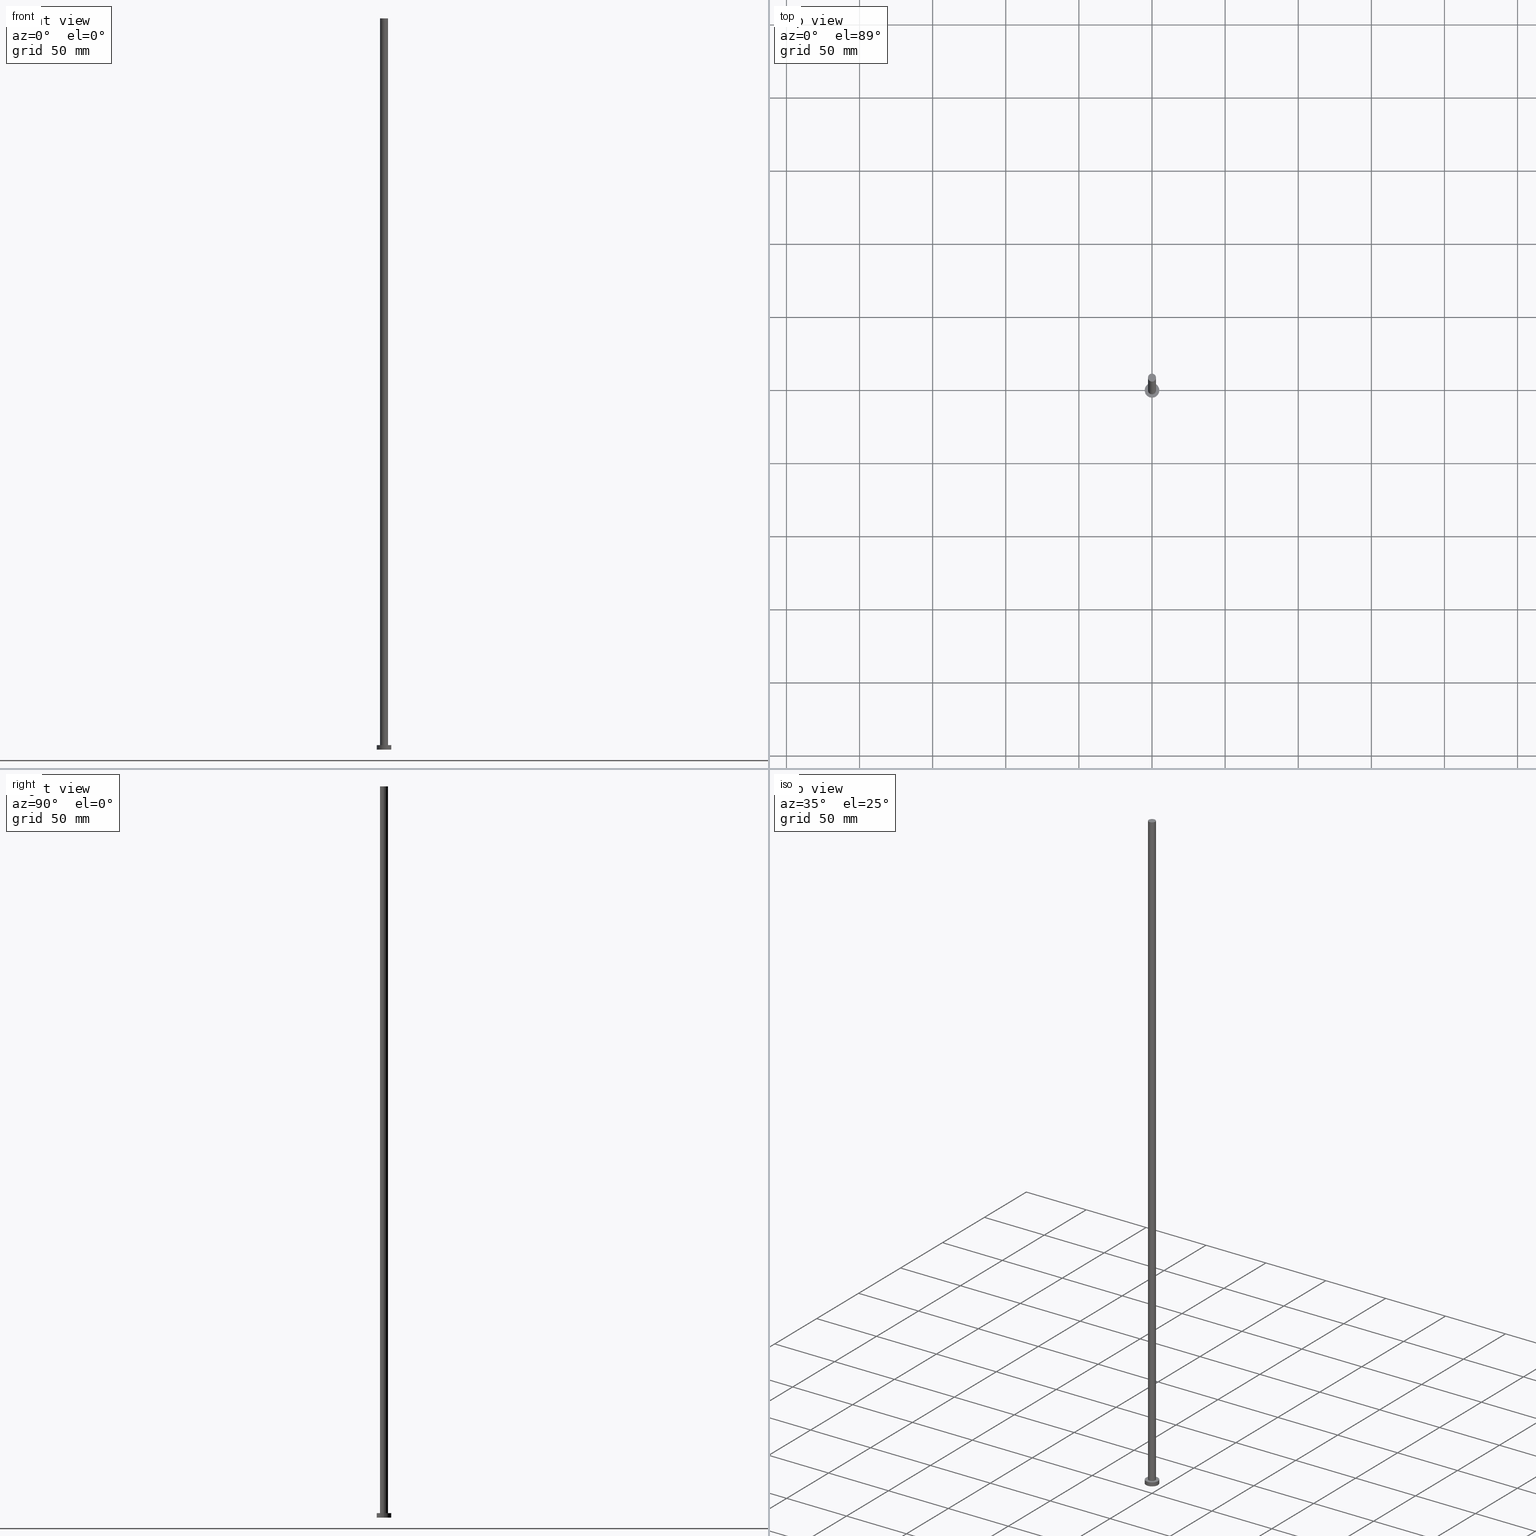
[diagram: canonical four-view strip — front | top / right | iso, engineering-drawing reading convention]
A machine part, canonical four-view strip (front | top / right | iso — engineering-drawing reading convention). The complete STEP part file that produces these views, byte-faithful:
ISO-10303-21;
HEADER;
FILE_DESCRIPTION (( 'STEP AP203' ),
    '1' );
FILE_NAME ('11bc.STEP',
    '2023-02-13T15:23:10',
    ( '' ),
    ( '' ),
    'SwSTEP 2.0',
    'SolidWorks 2019',
    '' );
FILE_SCHEMA (( 'CONFIG_CONTROL_DESIGN' ));
ENDSEC;

DATA;
#1 = PERSON_AND_ORGANIZATION ( #80, #245 ) ;
#2 = CARTESIAN_POINT ( 'NONE',  ( 0.000000000000000000, 0.000000000000000000, 0.000000000000000000 ) ) ;
#3 = PERSON_AND_ORGANIZATION ( #80, #245 ) ;
#4 = DIRECTION ( 'NONE',  ( 0.000000000000000000, 0.000000000000000000, 1.000000000000000000 ) ) ;
#5 = PRODUCT ( '11bc', '11bc', '', ( #178 ) ) ;
#6 = VERTEX_POINT ( 'NONE', #249 ) ;
#7 = DIRECTION ( 'NONE',  ( 0.000000000000000000, 0.000000000000000000, 1.000000000000000000 ) ) ;
#8 = VERTEX_POINT ( 'NONE', #146 ) ;
#9 = ORIENTED_EDGE ( 'NONE', *, *, #126, .F. ) ;
#10 = LINE ( 'NONE', #162, #170 ) ;
#11 = EDGE_CURVE ( 'NONE', #70, #6, #138, .T. ) ;
#12 = FACE_OUTER_BOUND ( 'NONE', #79, .T. ) ;
#13 = CIRCLE ( 'NONE', #211, 5.000000000000000000 ) ;
#14 = CARTESIAN_POINT ( 'NONE',  ( 2.750000000000000000, 3.367778697655220519E-16, 500.0000000000000000 ) ) ;
#15 = DIRECTION ( 'NONE',  ( -0.000000000000000000, -0.000000000000000000, -1.000000000000000000 ) ) ;
#16 = CC_DESIGN_DATE_AND_TIME_ASSIGNMENT ( #222, #60, ( #173 ) ) ;
#17 = APPLICATION_CONTEXT ( 'configuration controlled 3d designs of mechanical parts and assemblies' ) ;
#18 = APPROVAL_DATE_TIME ( #189, #214 ) ;
#19 = AXIS2_PLACEMENT_3D ( 'NONE', #2, #96, #130 ) ;
#20 = ORIENTED_EDGE ( 'NONE', *, *, #237, .F. ) ;
#21 = FACE_OUTER_BOUND ( 'NONE', #175, .T. ) ;
#22 = DATE_AND_TIME ( #194, #30 ) ;
#23 = DIRECTION ( 'NONE',  ( -1.000000000000000000, 0.000000000000000000, 0.000000000000000000 ) ) ;
#24 = CC_DESIGN_PERSON_AND_ORGANIZATION_ASSIGNMENT ( #66, #210, ( #82 ) ) ;
#25 = APPROVAL_PERSON_ORGANIZATION ( #1, #125, #156 ) ;
#26 = CARTESIAN_POINT ( 'NONE',  ( 0.000000000000000000, 0.000000000000000000, 500.0000000000000000 ) ) ;
#27 = DIRECTION ( 'NONE',  ( -0.000000000000000000, -0.000000000000000000, -1.000000000000000000 ) ) ;
#28 = CC_DESIGN_APPROVAL ( #164, ( #185 ) ) ;
#29 = EDGE_CURVE ( 'NONE', #8, #215, #221, .T. ) ;
#30 = LOCAL_TIME ( 16, 23, 10.00000000000000000, #135 ) ;
#31 = DIRECTION ( 'NONE',  ( 0.000000000000000000, 0.000000000000000000, 1.000000000000000000 ) ) ;
#32 = CC_DESIGN_PERSON_AND_ORGANIZATION_ASSIGNMENT ( #172, #250, ( #185 ) ) ;
#33 = PERSON_AND_ORGANIZATION_ROLE ( 'design_owner' ) ;
#34 = FACE_OUTER_BOUND ( 'NONE', #150, .T. ) ;
#35 = APPROVAL_DATE_TIME ( #228, #164 ) ;
#36 = CARTESIAN_POINT ( 'NONE',  ( -5.000000000000000000, 0.000000000000000000, 3.000000000000000000 ) ) ;
#37 = PERSON_AND_ORGANIZATION_ROLE ( 'design_supplier' ) ;
#38 = DIRECTION ( 'NONE',  ( 0.000000000000000000, 0.000000000000000000, 1.000000000000000000 ) ) ;
#39 = PERSON_AND_ORGANIZATION ( #80, #245 ) ;
#40 = ORIENTED_EDGE ( 'NONE', *, *, #97, .T. ) ;
#41 = DIRECTION ( 'NONE',  ( 1.000000000000000000, 0.000000000000000000, -0.000000000000000000 ) ) ;
#42 = CARTESIAN_POINT ( 'NONE',  ( 0.000000000000000000, 0.000000000000000000, 500.0000000000000000 ) ) ;
#43 = CARTESIAN_POINT ( 'NONE',  ( 0.000000000000000000, 0.000000000000000000, 3.000000000000000000 ) ) ;
#44 =( NAMED_UNIT ( * ) PLANE_ANGLE_UNIT ( ) SI_UNIT ( $, .RADIAN. ) );
#45 = APPROVAL_STATUS ( 'not_yet_approved' ) ;
#46 = AXIS2_PLACEMENT_3D ( 'NONE', #238, #114, #23 ) ;
#47 = APPROVAL_ROLE ( '' ) ;
#48 = EDGE_CURVE ( 'NONE', #6, #70, #109, .T. ) ;
#49 = AXIS2_PLACEMENT_3D ( 'NONE', #42, #242, #121 ) ;
#50 = DATE_AND_TIME ( #174, #53 ) ;
#51 = ORIENTED_EDGE ( 'NONE', *, *, #188, .T. ) ;
#52 =( LENGTH_UNIT ( ) NAMED_UNIT ( * ) SI_UNIT ( .MILLI., .METRE. ) );
#53 = LOCAL_TIME ( 16, 23, 10.00000000000000000, #148 ) ;
#54 = CARTESIAN_POINT ( 'NONE',  ( 0.000000000000000000, 0.000000000000000000, 3.000000000000000000 ) ) ;
#55 = CYLINDRICAL_SURFACE ( 'NONE', #46, 5.000000000000000000 ) ;
#56 = DIRECTION ( 'NONE',  ( 0.000000000000000000, 0.000000000000000000, 1.000000000000000000 ) ) ;
#57 = UNCERTAINTY_MEASURE_WITH_UNIT (LENGTH_MEASURE( 1.000000000000000082E-05 ), #52, 'distance_accuracy_value', 'NONE');
#58 = CYLINDRICAL_SURFACE ( 'NONE', #49, 2.750000000000000000 ) ;
#59 = LINE ( 'NONE', #14, #207 ) ;
#60 = DATE_TIME_ROLE ( 'creation_date' ) ;
#61 = ORIENTED_EDGE ( 'NONE', *, *, #190, .F. ) ;
#62 = CC_DESIGN_PERSON_AND_ORGANIZATION_ASSIGNMENT ( #191, #33, ( #5 ) ) ;
#63 = CARTESIAN_POINT ( 'NONE',  ( 5.000000000000000000, 6.123233995736766282E-16, 3.000000000000000000 ) ) ;
#64 = FACE_OUTER_BOUND ( 'NONE', #123, .T. ) ;
#65 = DIRECTION ( 'NONE',  ( 0.000000000000000000, 0.000000000000000000, 1.000000000000000000 ) ) ;
#66 = PERSON_AND_ORGANIZATION ( #80, #245 ) ;
#67 = DIRECTION ( 'NONE',  ( 0.000000000000000000, 0.000000000000000000, 1.000000000000000000 ) ) ;
#68 = EDGE_CURVE ( 'NONE', #230, #99, #160, .T. ) ;
#69 = APPLICATION_PROTOCOL_DEFINITION ( 'international standard', 'config_control_design', 1994, #201 ) ;
#70 = VERTEX_POINT ( 'NONE', #195 ) ;
#71 = CARTESIAN_POINT ( 'NONE',  ( 2.750000000000000000, 3.367778697655220519E-16, 500.0000000000000000 ) ) ;
#72 = DIRECTION ( 'NONE',  ( 0.000000000000000000, 0.000000000000000000, 1.000000000000000000 ) ) ;
#73 = APPROVAL_PERSON_ORGANIZATION ( #205, #164, #47 ) ;
#74 = ORIENTED_EDGE ( 'NONE', *, *, #117, .F. ) ;
#75 = EDGE_CURVE ( 'NONE', #99, #230, #108, .T. ) ;
#76 = CIRCLE ( 'NONE', #227, 5.000000000000000000 ) ;
#77 = PLANE ( 'NONE',  #84 ) ;
#78 = VERTEX_POINT ( 'NONE', #132 ) ;
#79 = EDGE_LOOP ( 'NONE', ( #61, #226 ) ) ;
#80 = PERSON ( 'NEUR�EN�', 'NEUR�EN�', 'NEUR�EN�', ('NEUR�EN�'), ('NEUR�EN�'), ('NEUR�EN�') ) ;
#81 = AXIS2_PLACEMENT_3D ( 'NONE', #54, #31, #112 ) ;
#82 = PRODUCT_DEFINITION_FORMATION_WITH_SPECIFIED_SOURCE ( 'LIBOVOLN�', '', #5, .NOT_KNOWN. ) ;
#83 = DIRECTION ( 'NONE',  ( 0.000000000000000000, 0.000000000000000000, 1.000000000000000000 ) ) ;
#84 = AXIS2_PLACEMENT_3D ( 'NONE', #184, #83, #41 ) ;
#85 = FACE_OUTER_BOUND ( 'NONE', #88, .T. ) ;
#86 = COORDINATED_UNIVERSAL_TIME_OFFSET ( 1, 0, .AHEAD. ) ;
#87 = ORIENTED_EDGE ( 'NONE', *, *, #68, .F. ) ;
#88 = EDGE_LOOP ( 'NONE', ( #139, #89 ) ) ;
#89 = ORIENTED_EDGE ( 'NONE', *, *, #237, .T. ) ;
#90 = ORIENTED_EDGE ( 'NONE', *, *, #75, .F. ) ;
#91 = ORIENTED_EDGE ( 'NONE', *, *, #97, .F. ) ;
#92 = CARTESIAN_POINT ( 'NONE',  ( 0.000000000000000000, 0.000000000000000000, 500.0000000000000000 ) ) ;
#93 = ADVANCED_FACE ( 'NONE', ( #34 ), #55, .T. ) ;
#94 = APPROVAL_DATE_TIME ( #22, #125 ) ;
#95 = ORIENTED_EDGE ( 'NONE', *, *, #199, .F. ) ;
#96 = DIRECTION ( 'NONE',  ( 0.000000000000000000, 0.000000000000000000, 1.000000000000000000 ) ) ;
#97 = EDGE_CURVE ( 'NONE', #78, #215, #133, .T. ) ;
#98 = DIRECTION ( 'NONE',  ( -0.000000000000000000, -0.000000000000000000, -1.000000000000000000 ) ) ;
#99 = VERTEX_POINT ( 'NONE', #71 ) ;
#100 = AXIS2_PLACEMENT_3D ( 'NONE', #168, #165, #140 ) ;
#101 = DIRECTION ( 'NONE',  ( 1.000000000000000000, 0.000000000000000000, 0.000000000000000000 ) ) ;
#102 = ORIENTED_EDGE ( 'NONE', *, *, #75, .T. ) ;
#103 = FACE_OUTER_BOUND ( 'NONE', #219, .T. ) ;
#104 = CARTESIAN_POINT ( 'NONE',  ( 0.000000000000000000, 0.000000000000000000, 0.000000000000000000 ) ) ;
#105 = ADVANCED_BREP_SHAPE_REPRESENTATION ( '11bc', ( #155, #251 ), #134 ) ;
#106 = DESIGN_CONTEXT ( 'detailed design', #17, 'design' ) ;
#107 = AXIS2_PLACEMENT_3D ( 'NONE', #152, #65, #145 ) ;
#108 = CIRCLE ( 'NONE', #247, 2.750000000000000000 ) ;
#109 = CIRCLE ( 'NONE', #81, 2.750000000000000000 ) ;
#110 = CC_DESIGN_PERSON_AND_ORGANIZATION_ASSIGNMENT ( #116, #37, ( #82 ) ) ;
#111 = CARTESIAN_POINT ( 'NONE',  ( 0.000000000000000000, 0.000000000000000000, 3.000000000000000000 ) ) ;
#112 = DIRECTION ( 'NONE',  ( 1.000000000000000000, 0.000000000000000000, 0.000000000000000000 ) ) ;
#113 = APPLICATION_PROTOCOL_DEFINITION ( 'international standard', 'config_control_design', 1994, #17 ) ;
#114 = DIRECTION ( 'NONE',  ( -0.000000000000000000, -0.000000000000000000, -1.000000000000000000 ) ) ;
#115 = ADVANCED_FACE ( 'NONE', ( #21 ), #218, .T. ) ;
#116 = PERSON_AND_ORGANIZATION ( #80, #245 ) ;
#117 = EDGE_CURVE ( 'NONE', #78, #203, #76, .T. ) ;
#118 = LOCAL_TIME ( 16, 23, 10.00000000000000000, #127 ) ;
#119 = DIRECTION ( 'NONE',  ( -1.000000000000000000, 0.000000000000000000, 0.000000000000000000 ) ) ;
#120 = ORIENTED_EDGE ( 'NONE', *, *, #29, .T. ) ;
#121 = DIRECTION ( 'NONE',  ( -1.000000000000000000, 0.000000000000000000, 0.000000000000000000 ) ) ;
#122 = COORDINATED_UNIVERSAL_TIME_OFFSET ( 1, 0, .AHEAD. ) ;
#123 = EDGE_LOOP ( 'NONE', ( #90, #158, #159, #186 ) ) ;
#124 = DIRECTION ( 'NONE',  ( -0.000000000000000000, -0.000000000000000000, -1.000000000000000000 ) ) ;
#125 = APPROVAL ( #180, 'NEUR�EN�' ) ;
#126 = EDGE_CURVE ( 'NONE', #203, #8, #10, .T. ) ;
#127 = COORDINATED_UNIVERSAL_TIME_OFFSET ( 1, 0, .AHEAD. ) ;
#128 = DATE_TIME_ROLE ( 'classification_date' ) ;
#129 = CALENDAR_DATE ( 2023, 13, 2 ) ;
#130 = DIRECTION ( 'NONE',  ( 1.000000000000000000, 0.000000000000000000, 0.000000000000000000 ) ) ;
#131 = SHAPE_DEFINITION_REPRESENTATION ( #213, #105 ) ;
#132 = CARTESIAN_POINT ( 'NONE',  ( -5.000000000000000000, 0.000000000000000000, 3.000000000000000000 ) ) ;
#133 = LINE ( 'NONE', #36, #144 ) ;
#134 =( GEOMETRIC_REPRESENTATION_CONTEXT ( 3 ) GLOBAL_UNCERTAINTY_ASSIGNED_CONTEXT ( ( #57 ) ) GLOBAL_UNIT_ASSIGNED_CONTEXT ( ( #52, #44, #225 ) ) REPRESENTATION_CONTEXT ( 'NONE', 'WORKASPACE' ) );
#135 = COORDINATED_UNIVERSAL_TIME_OFFSET ( 1, 0, .AHEAD. ) ;
#136 = PERSON_AND_ORGANIZATION_ROLE ( 'creator' ) ;
#137 = PRODUCT_RELATED_PRODUCT_CATEGORY ( 'detail', '', ( #5 ) ) ;
#138 = CIRCLE ( 'NONE', #197, 2.750000000000000000 ) ;
#139 = ORIENTED_EDGE ( 'NONE', *, *, #117, .T. ) ;
#140 = DIRECTION ( 'NONE',  ( 1.000000000000000000, 0.000000000000000000, -0.000000000000000000 ) ) ;
#141 = ORIENTED_EDGE ( 'NONE', *, *, #126, .T. ) ;
#142 = FACE_OUTER_BOUND ( 'NONE', #217, .T. ) ;
#143 = ORIENTED_EDGE ( 'NONE', *, *, #190, .T. ) ;
#144 = VECTOR ( 'NONE', #193, 1000.000000000000000 ) ;
#145 = DIRECTION ( 'NONE',  ( 1.000000000000000000, 0.000000000000000000, -0.000000000000000000 ) ) ;
#146 = CARTESIAN_POINT ( 'NONE',  ( 5.000000000000000000, 6.123233995736766282E-16, 0.000000000000000000 ) ) ;
#147 = APPROVAL_STATUS ( 'not_yet_approved' ) ;
#148 = COORDINATED_UNIVERSAL_TIME_OFFSET ( 1, 0, .AHEAD. ) ;
#149 = FACE_BOUND ( 'NONE', #200, .T. ) ;
#150 = EDGE_LOOP ( 'NONE', ( #20, #141, #120, #91 ) ) ;
#151 = AXIS2_PLACEMENT_3D ( 'NONE', #26, #98, #119 ) ;
#152 = CARTESIAN_POINT ( 'NONE',  ( 0.000000000000000000, 0.000000000000000000, 3.000000000000000000 ) ) ;
#153 = DIRECTION ( 'NONE',  ( 1.000000000000000000, 0.000000000000000000, 0.000000000000000000 ) ) ;
#154 = CC_DESIGN_DATE_AND_TIME_ASSIGNMENT ( #50, #128, ( #185 ) ) ;
#155 = MANIFOLD_SOLID_BREP ( 'P�idat vysunut�m3', #252 ) ;
#156 = APPROVAL_ROLE ( '' ) ;
#157 = CC_DESIGN_SECURITY_CLASSIFICATION ( #185, ( #82 ) ) ;
#158 = ORIENTED_EDGE ( 'NONE', *, *, #199, .T. ) ;
#159 = ORIENTED_EDGE ( 'NONE', *, *, #48, .T. ) ;
#160 = CIRCLE ( 'NONE', #244, 2.750000000000000000 ) ;
#161 = DIRECTION ( 'NONE',  ( 1.000000000000000000, 0.000000000000000000, 0.000000000000000000 ) ) ;
#162 = CARTESIAN_POINT ( 'NONE',  ( 5.000000000000000000, 6.123233995736766282E-16, 3.000000000000000000 ) ) ;
#163 = ORIENTED_EDGE ( 'NONE', *, *, #11, .T. ) ;
#164 = APPROVAL ( #147, 'NEUR�EN�' ) ;
#165 = DIRECTION ( 'NONE',  ( 0.000000000000000000, 0.000000000000000000, 1.000000000000000000 ) ) ;
#166 = ADVANCED_FACE ( 'NONE', ( #64 ), #58, .T. ) ;
#167 = LOCAL_TIME ( 16, 23, 10.00000000000000000, #122 ) ;
#168 = CARTESIAN_POINT ( 'NONE',  ( 0.000000000000000000, 0.000000000000000000, 0.000000000000000000 ) ) ;
#169 = SECURITY_CLASSIFICATION_LEVEL ( 'unclassified' ) ;
#170 = VECTOR ( 'NONE', #27, 1000.000000000000000 ) ;
#171 = PLANE ( 'NONE',  #107 ) ;
#172 = PERSON_AND_ORGANIZATION ( #80, #245 ) ;
#173 = PRODUCT_DEFINITION ( 'NEZN�M�', '', #82, #106 ) ;
#174 = CALENDAR_DATE ( 2023, 13, 2 ) ;
#175 = EDGE_LOOP ( 'NONE', ( #95, #87, #51, #163 ) ) ;
#176 = CC_DESIGN_PERSON_AND_ORGANIZATION_ASSIGNMENT ( #3, #136, ( #173 ) ) ;
#177 = APPROVAL_PERSON_ORGANIZATION ( #39, #214, #240 ) ;
#178 = MECHANICAL_CONTEXT ( 'NONE', #201, 'mechanical' ) ;
#179 = DIRECTION ( 'NONE',  ( 1.000000000000000000, 0.000000000000000000, 0.000000000000000000 ) ) ;
#180 = APPROVAL_STATUS ( 'not_yet_approved' ) ;
#181 = ORIENTED_EDGE ( 'NONE', *, *, #11, .F. ) ;
#182 = LINE ( 'NONE', #212, #196 ) ;
#183 = AXIS2_PLACEMENT_3D ( 'NONE', #104, #7, #161 ) ;
#184 = CARTESIAN_POINT ( 'NONE',  ( 0.000000000000000000, 0.000000000000000000, 500.0000000000000000 ) ) ;
#185 = SECURITY_CLASSIFICATION ( '', '', #169 ) ;
#186 = ORIENTED_EDGE ( 'NONE', *, *, #188, .F. ) ;
#187 = AXIS2_PLACEMENT_3D ( 'NONE', #43, #124, #253 ) ;
#188 = EDGE_CURVE ( 'NONE', #230, #70, #182, .T. ) ;
#189 = DATE_AND_TIME ( #248, #232 ) ;
#190 = EDGE_CURVE ( 'NONE', #215, #8, #229, .T. ) ;
#191 = PERSON_AND_ORGANIZATION ( #80, #245 ) ;
#192 = CARTESIAN_POINT ( 'NONE',  ( 0.000000000000000000, 0.000000000000000000, 3.000000000000000000 ) ) ;
#193 = DIRECTION ( 'NONE',  ( -0.000000000000000000, -0.000000000000000000, -1.000000000000000000 ) ) ;
#194 = CALENDAR_DATE ( 2023, 13, 2 ) ;
#195 = CARTESIAN_POINT ( 'NONE',  ( -2.750000000000000000, 0.000000000000000000, 3.000000000000000000 ) ) ;
#196 = VECTOR ( 'NONE', #198, 1000.000000000000000 ) ;
#197 = AXIS2_PLACEMENT_3D ( 'NONE', #192, #4, #153 ) ;
#198 = DIRECTION ( 'NONE',  ( -0.000000000000000000, -0.000000000000000000, -1.000000000000000000 ) ) ;
#199 = EDGE_CURVE ( 'NONE', #99, #6, #59, .T. ) ;
#200 = EDGE_LOOP ( 'NONE', ( #181, #254 ) ) ;
#201 = APPLICATION_CONTEXT ( 'configuration controlled 3d designs of mechanical parts and assemblies' ) ;
#202 = CARTESIAN_POINT ( 'NONE',  ( -5.000000000000000000, 0.000000000000000000, 0.000000000000000000 ) ) ;
#203 = VERTEX_POINT ( 'NONE', #63 ) ;
#204 = CC_DESIGN_APPROVAL ( #214, ( #82 ) ) ;
#205 = PERSON_AND_ORGANIZATION ( #80, #245 ) ;
#206 = ADVANCED_FACE ( 'NONE', ( #142 ), #77, .T. ) ;
#207 = VECTOR ( 'NONE', #15, 1000.000000000000000 ) ;
#208 = ADVANCED_FACE ( 'NONE', ( #12 ), #224, .F. ) ;
#209 = DIRECTION ( 'NONE',  ( 0.000000000000000000, 0.000000000000000000, 1.000000000000000000 ) ) ;
#210 = PERSON_AND_ORGANIZATION_ROLE ( 'creator' ) ;
#211 = AXIS2_PLACEMENT_3D ( 'NONE', #111, #67, #233 ) ;
#212 = CARTESIAN_POINT ( 'NONE',  ( -2.750000000000000000, 0.000000000000000000, 500.0000000000000000 ) ) ;
#213 = PRODUCT_DEFINITION_SHAPE ( 'NONE', 'NONE',  #173 ) ;
#214 = APPROVAL ( #45, 'NEUR�EN�' ) ;
#215 = VERTEX_POINT ( 'NONE', #202 ) ;
#216 = CARTESIAN_POINT ( 'NONE',  ( 0.000000000000000000, 0.000000000000000000, 3.000000000000000000 ) ) ;
#217 = EDGE_LOOP ( 'NONE', ( #223, #102 ) ) ;
#218 = CYLINDRICAL_SURFACE ( 'NONE', #151, 2.750000000000000000 ) ;
#219 = EDGE_LOOP ( 'NONE', ( #9, #74, #40, #143 ) ) ;
#220 = CYLINDRICAL_SURFACE ( 'NONE', #187, 5.000000000000000000 ) ;
#221 = CIRCLE ( 'NONE', #19, 5.000000000000000000 ) ;
#222 = DATE_AND_TIME ( #243, #167 ) ;
#223 = ORIENTED_EDGE ( 'NONE', *, *, #68, .T. ) ;
#224 = PLANE ( 'NONE',  #100 ) ;
#225 =( NAMED_UNIT ( * ) SI_UNIT ( $, .STERADIAN. ) SOLID_ANGLE_UNIT ( ) );
#226 = ORIENTED_EDGE ( 'NONE', *, *, #29, .F. ) ;
#227 = AXIS2_PLACEMENT_3D ( 'NONE', #216, #38, #101 ) ;
#228 = DATE_AND_TIME ( #129, #118 ) ;
#229 = CIRCLE ( 'NONE', #183, 5.000000000000000000 ) ;
#230 = VERTEX_POINT ( 'NONE', #246 ) ;
#231 = ADVANCED_FACE ( 'NONE', ( #103 ), #220, .T. ) ;
#232 = LOCAL_TIME ( 16, 23, 10.00000000000000000, #86 ) ;
#233 = DIRECTION ( 'NONE',  ( 1.000000000000000000, 0.000000000000000000, 0.000000000000000000 ) ) ;
#234 = CARTESIAN_POINT ( 'NONE',  ( 0.000000000000000000, 0.000000000000000000, 500.0000000000000000 ) ) ;
#235 = DIRECTION ( 'NONE',  ( 1.000000000000000000, 0.000000000000000000, 0.000000000000000000 ) ) ;
#236 = DIRECTION ( 'NONE',  ( 1.000000000000000000, 0.000000000000000000, 0.000000000000000000 ) ) ;
#237 = EDGE_CURVE ( 'NONE', #203, #78, #13, .T. ) ;
#238 = CARTESIAN_POINT ( 'NONE',  ( 0.000000000000000000, 0.000000000000000000, 3.000000000000000000 ) ) ;
#239 = CARTESIAN_POINT ( 'NONE',  ( 0.000000000000000000, 0.000000000000000000, 0.000000000000000000 ) ) ;
#240 = APPROVAL_ROLE ( '' ) ;
#241 = ADVANCED_FACE ( 'NONE', ( #149, #85 ), #171, .T. ) ;
#242 = DIRECTION ( 'NONE',  ( -0.000000000000000000, -0.000000000000000000, -1.000000000000000000 ) ) ;
#243 = CALENDAR_DATE ( 2023, 13, 2 ) ;
#244 = AXIS2_PLACEMENT_3D ( 'NONE', #92, #209, #179 ) ;
#245 = ORGANIZATION ( 'NEUR�EN�', 'NEUR�EN�', '' ) ;
#246 = CARTESIAN_POINT ( 'NONE',  ( -2.750000000000000000, 0.000000000000000000, 500.0000000000000000 ) ) ;
#247 = AXIS2_PLACEMENT_3D ( 'NONE', #234, #72, #236 ) ;
#248 = CALENDAR_DATE ( 2023, 13, 2 ) ;
#249 = CARTESIAN_POINT ( 'NONE',  ( 2.750000000000000000, 3.367778697655220519E-16, 3.000000000000000000 ) ) ;
#250 = PERSON_AND_ORGANIZATION_ROLE ( 'classification_officer' ) ;
#251 = AXIS2_PLACEMENT_3D ( 'NONE', #239, #56, #235 ) ;
#252 = CLOSED_SHELL ( 'NONE', ( #166, #93, #231, #241, #208, #115, #206 ) ) ;
#253 = DIRECTION ( 'NONE',  ( -1.000000000000000000, 0.000000000000000000, 0.000000000000000000 ) ) ;
#254 = ORIENTED_EDGE ( 'NONE', *, *, #48, .F. ) ;
#255 = CC_DESIGN_APPROVAL ( #125, ( #173 ) ) ;
ENDSEC;
END-ISO-10303-21;
